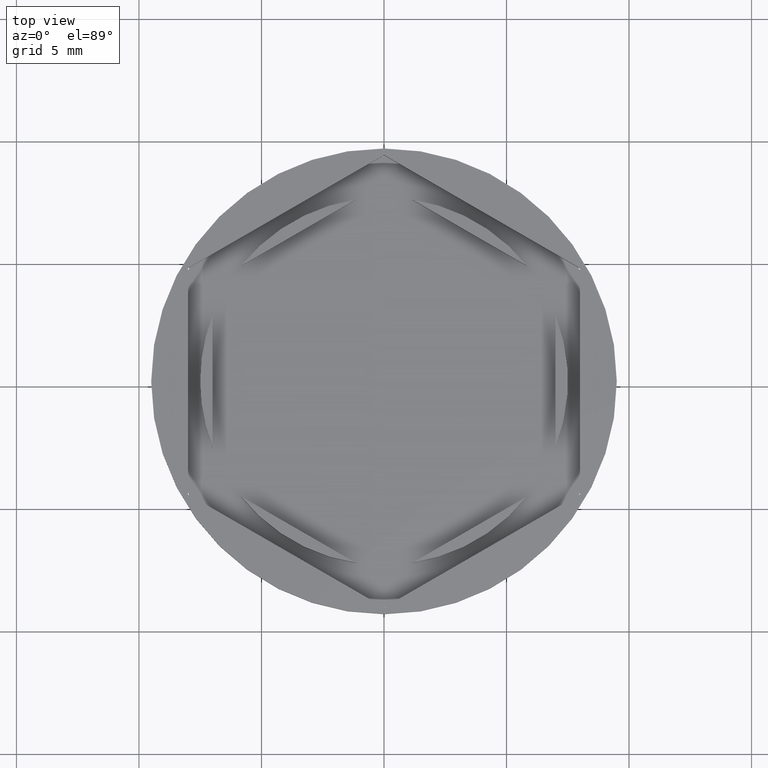
[diagram: clean part render]
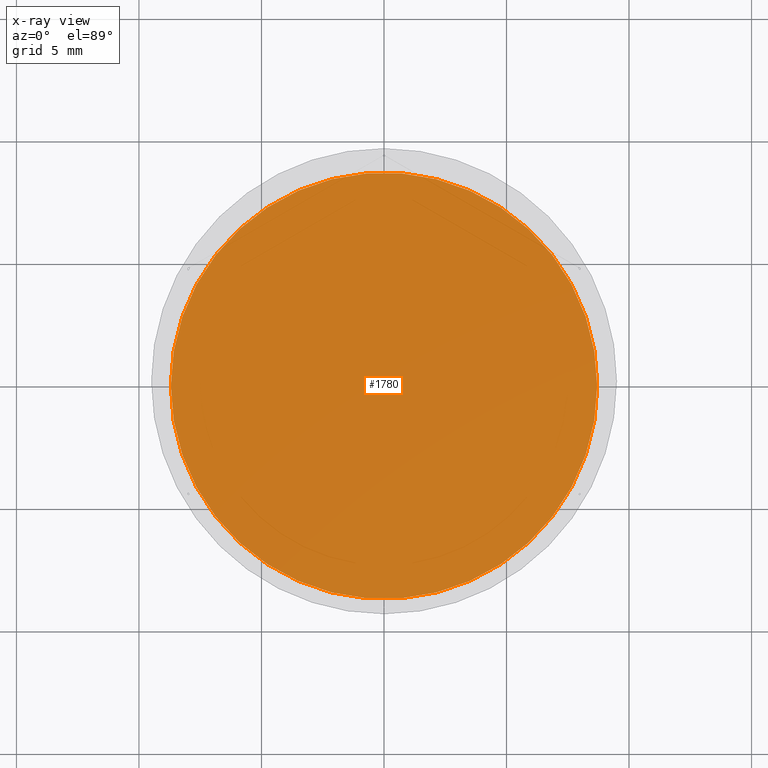
[diagram: x-ray — body ghosted, one internal face saturated and labeled with its STEP entity id]
A machine part, top view, then the same camera in x-ray: the body is ghosted and one INTERNAL B-rep face — a face not visible from any outside direction — is saturated and labeled: STEP entity #1780.
In plain terms, the highlighted planar face has unit normal (0, 0, -1).
Its self-contained STEP definition (entity closure, byte-faithful):
#28 = ORIENTED_EDGE ( 'NONE', *, *, #646, .T. ) ;
#35 = AXIS2_PLACEMENT_3D ( 'NONE', #1076, #1724, #229 ) ;
#102 = CARTESIAN_POINT ( 'NONE',  ( 8.700000000000001066, 1.083812417245407678E-15, -11.00000000000000000 ) ) ;
#111 = CIRCLE ( 'NONE', #35, 8.700000000000001066 ) ;
#148 = EDGE_LOOP ( 'NONE', ( #28, #1258 ) ) ;
#229 = DIRECTION ( 'NONE',  ( -1.000000000000000000, 0.000000000000000000, 0.000000000000000000 ) ) ;
#359 = DIRECTION ( 'NONE',  ( 0.000000000000000000, 0.000000000000000000, -1.000000000000000000 ) ) ;
#390 = CARTESIAN_POINT ( 'NONE',  ( 0.000000000000000000, 0.000000000000000000, -11.00000000000000000 ) ) ;
#419 = DIRECTION ( 'NONE',  ( -0.000000000000000000, -0.000000000000000000, 1.000000000000000000 ) ) ;
#534 = DIRECTION ( 'NONE',  ( -1.000000000000000000, 0.000000000000000000, -0.000000000000000000 ) ) ;
#545 = PLANE ( 'NONE',  #1788 ) ;
#646 = EDGE_CURVE ( 'NONE', #1130, #1423, #111, .T. ) ;
#1044 = CARTESIAN_POINT ( 'NONE',  ( -8.700000000000001066, 0.000000000000000000, -11.00000000000000000 ) ) ;
#1076 = CARTESIAN_POINT ( 'NONE',  ( 0.000000000000000000, 0.000000000000000000, -11.00000000000000000 ) ) ;
#1130 = VERTEX_POINT ( 'NONE', #1044 ) ;
#1183 = CARTESIAN_POINT ( 'NONE',  ( 0.000000000000000000, 0.000000000000000000, -11.00000000000000000 ) ) ;
#1217 = AXIS2_PLACEMENT_3D ( 'NONE', #390, #419, #1563 ) ;
#1258 = ORIENTED_EDGE ( 'NONE', *, *, #1325, .T. ) ;
#1325 = EDGE_CURVE ( 'NONE', #1423, #1130, #1972, .T. ) ;
#1423 = VERTEX_POINT ( 'NONE', #102 ) ;
#1563 = DIRECTION ( 'NONE',  ( -1.000000000000000000, 0.000000000000000000, 0.000000000000000000 ) ) ;
#1724 = DIRECTION ( 'NONE',  ( -0.000000000000000000, -0.000000000000000000, 1.000000000000000000 ) ) ;
#1780 = ADVANCED_FACE ( 'NONE', ( #1814 ), #545, .F. ) ;
#1788 = AXIS2_PLACEMENT_3D ( 'NONE', #1183, #359, #534 ) ;
#1814 = FACE_OUTER_BOUND ( 'NONE', #148, .T. ) ;
#1972 = CIRCLE ( 'NONE', #1217, 8.700000000000001066 ) ;